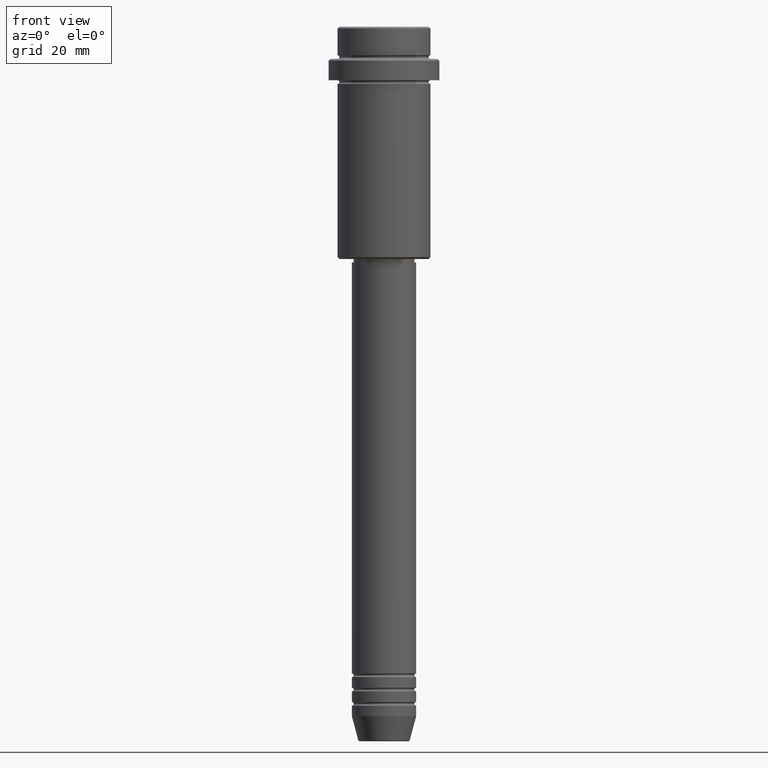
[diagram: clean part render]
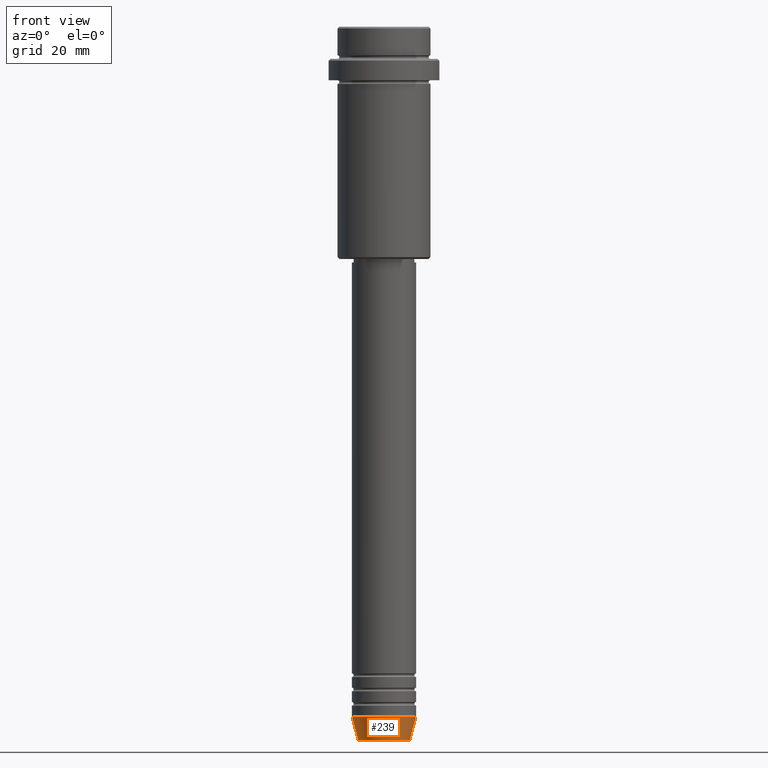
[diagram: same view with one face highlighted and labeled with its STEP entity id]
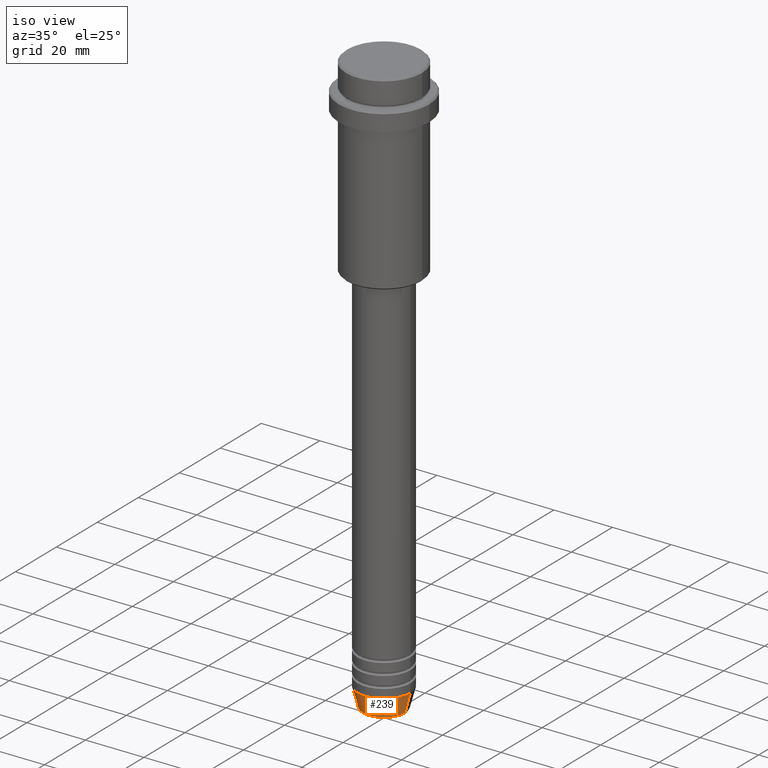
[diagram: same view with one face highlighted and labeled with its STEP entity id]
A machine part, front view. The second image highlights one B-rep face of the part: STEP entity #239.
A second angle (iso view) of the same face is appended — the face is thin or edge-on in the first view.
In plain terms, the highlighted conical surface has half-angle 15 deg.
Its self-contained STEP definition (entity closure, byte-faithful):
#24 = CARTESIAN_POINT ( 'NONE',  ( 0.000000000000000000, 0.000000000000000000, -193.0000000000000000 ) ) ;
#25 = CARTESIAN_POINT ( 'NONE',  ( 9.000000000000000000, 0.000000000000000000, -193.0000000000000000 ) ) ;
#42 = DIRECTION ( 'NONE',  ( 0.2588190451025213501, 0.000000000000000000, 0.9659258262890680902 ) ) ;
#54 = VERTEX_POINT ( 'NONE', #1072 ) ;
#65 = DIRECTION ( 'NONE',  ( 1.000000000000000000, 0.000000000000000000, 0.000000000000000000 ) ) ;
#121 = CARTESIAN_POINT ( 'NONE',  ( 0.000000000000000000, 0.000000000000000000, -193.0000000000000000 ) ) ;
#122 = ORIENTED_EDGE ( 'NONE', *, *, #1034, .T. ) ;
#197 = VERTEX_POINT ( 'NONE', #25 ) ;
#239 = ADVANCED_FACE ( 'NONE', ( #585 ), #271, .T. ) ;
#258 = VERTEX_POINT ( 'NONE', #577 ) ;
#271 = CONICAL_SURFACE ( 'NONE', #341, 9.000000000000000000, 0.2617993877991500740 ) ;
#289 = CARTESIAN_POINT ( 'NONE',  ( 0.000000000000000000, 0.000000000000000000, -199.6294095225512990 ) ) ;
#303 = EDGE_CURVE ( 'NONE', #54, #258, #785, .T. ) ;
#341 = AXIS2_PLACEMENT_3D ( 'NONE', #121, #1316, #568 ) ;
#401 = CARTESIAN_POINT ( 'NONE',  ( 9.000000000000000000, 0.000000000000000000, -193.0000000000000000 ) ) ;
#414 = DIRECTION ( 'NONE',  ( -0.000000000000000000, -0.000000000000000000, 1.000000000000000000 ) ) ;
#446 = DIRECTION ( 'NONE',  ( -0.000000000000000000, -0.000000000000000000, 1.000000000000000000 ) ) ;
#568 = DIRECTION ( 'NONE',  ( 1.000000000000000000, 0.000000000000000000, 0.000000000000000000 ) ) ;
#577 = CARTESIAN_POINT ( 'NONE',  ( -9.000000000000000000, 1.102182119232617714E-15, -193.0000000000000000 ) ) ;
#585 = FACE_OUTER_BOUND ( 'NONE', #979, .T. ) ;
#657 = VERTEX_POINT ( 'NONE', #1414 ) ;
#681 = ORIENTED_EDGE ( 'NONE', *, *, #813, .T. ) ;
#683 = EDGE_CURVE ( 'NONE', #258, #197, #895, .T. ) ;
#736 = CIRCLE ( 'NONE', #1362, 7.223655072137188604 ) ;
#785 = LINE ( 'NONE', #802, #963 ) ;
#802 = CARTESIAN_POINT ( 'NONE',  ( -9.000000000000000000, 1.102182119232617714E-15, -193.0000000000000000 ) ) ;
#813 = EDGE_CURVE ( 'NONE', #657, #197, #1122, .T. ) ;
#895 = CIRCLE ( 'NONE', #1309, 9.000000000000000000 ) ;
#900 = DIRECTION ( 'NONE',  ( -0.2588190451025213501, 3.169619151431772337E-17, 0.9659258262890680902 ) ) ;
#908 = DIRECTION ( 'NONE',  ( 1.000000000000000000, 0.000000000000000000, 0.000000000000000000 ) ) ;
#924 = ORIENTED_EDGE ( 'NONE', *, *, #683, .F. ) ;
#963 = VECTOR ( 'NONE', #900, 1000.000000000000000 ) ;
#964 = VECTOR ( 'NONE', #42, 1000.000000000000000 ) ;
#979 = EDGE_LOOP ( 'NONE', ( #1342, #122, #681, #924 ) ) ;
#1034 = EDGE_CURVE ( 'NONE', #54, #657, #736, .T. ) ;
#1072 = CARTESIAN_POINT ( 'NONE',  ( -7.223655072137189492, 9.934123627281765110E-16, -199.6294095225512990 ) ) ;
#1122 = LINE ( 'NONE', #401, #964 ) ;
#1309 = AXIS2_PLACEMENT_3D ( 'NONE', #24, #446, #908 ) ;
#1316 = DIRECTION ( 'NONE',  ( -0.000000000000000000, -0.000000000000000000, 1.000000000000000000 ) ) ;
#1342 = ORIENTED_EDGE ( 'NONE', *, *, #303, .F. ) ;
#1362 = AXIS2_PLACEMENT_3D ( 'NONE', #289, #414, #65 ) ;
#1414 = CARTESIAN_POINT ( 'NONE',  ( 7.223655072137188604, 0.000000000000000000, -199.6294095225512990 ) ) ;